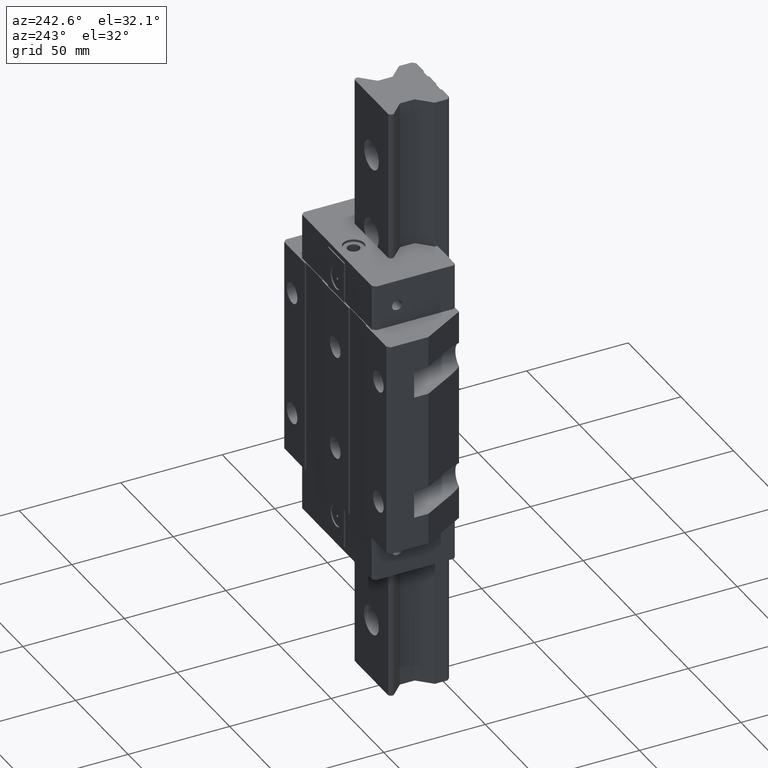
[diagram: clean part render]
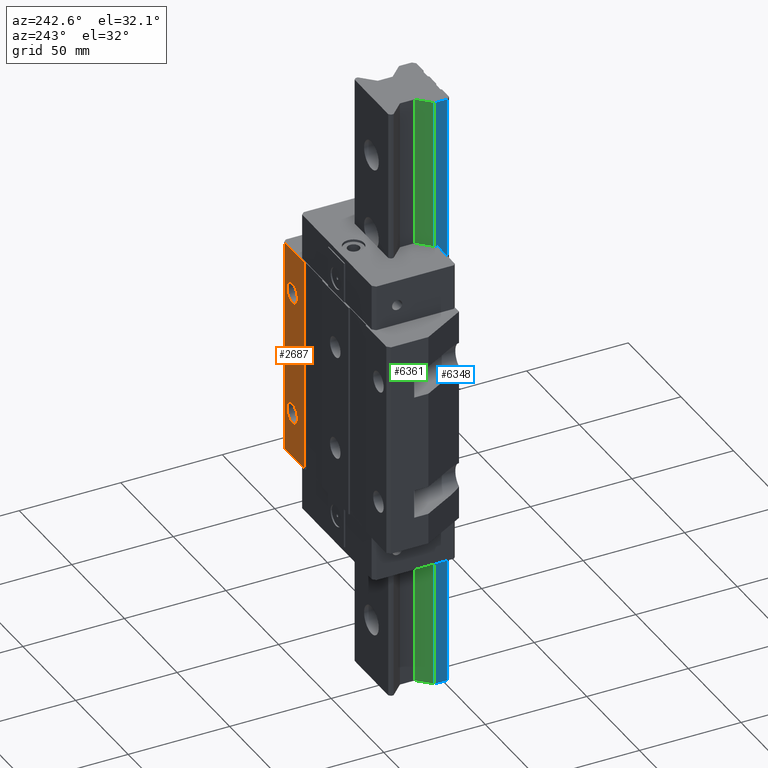
[diagram: same view with three faces highlighted in distinct colors, each labeled with its STEP entity id]
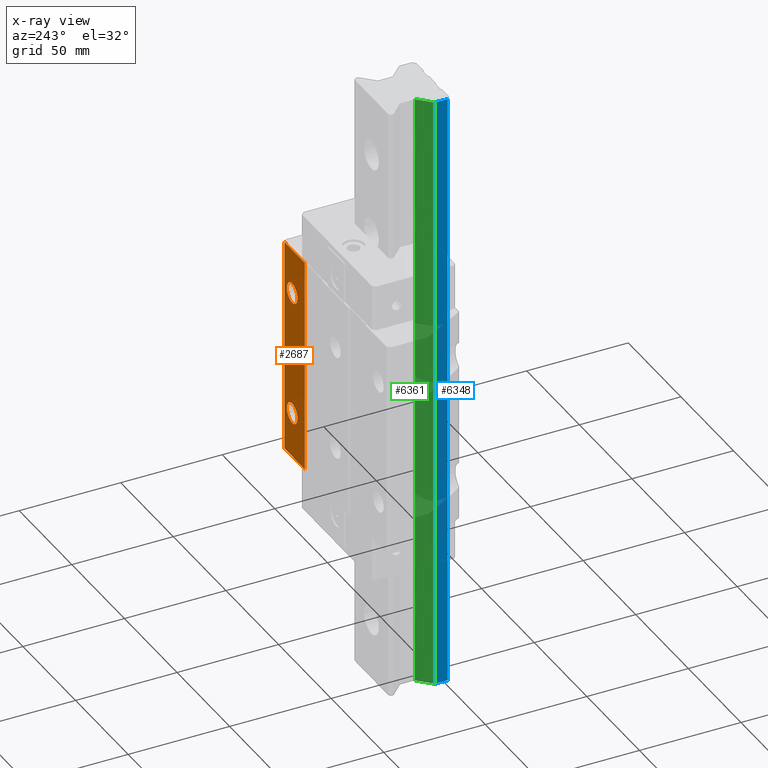
[diagram: x-ray of the same camera — body ghosted, the three highlighted faces saturated]
A machine part, auxiliary view with three faces highlighted in distinct colors.
The next image is the same camera in x-ray (body ghosted, the three faces saturated) — at least one of them is partly hidden behind the body in this view.
Their STEP definitions:

[orange] entity #2687 — the highlighted planar face has unit normal (0, 1, 0).
#273=DIRECTION('',(1.E0,0.E0,0.E0));
#274=VECTOR('',#273,1.95E1);
#275=CARTESIAN_POINT('',(2.9E1,4.8E1,5.325E1));
#276=LINE('',#275,#274);
#568=DIRECTION('',(1.E0,0.E0,0.E0));
#569=VECTOR('',#568,1.95E1);
#570=CARTESIAN_POINT('',(2.9E1,4.8E1,-5.325E1));
#571=LINE('',#570,#569);
#572=DIRECTION('',(0.E0,0.E0,-1.E0));
#573=VECTOR('',#572,1.065E2);
#574=CARTESIAN_POINT('',(2.9E1,4.8E1,5.325E1));
#575=LINE('',#574,#573);
#592=CARTESIAN_POINT('',(4.1E1,4.8E1,-3.1E1));
#593=DIRECTION('',(0.E0,1.E0,0.E0));
#594=DIRECTION('',(0.E0,0.E0,1.E0));
#595=AXIS2_PLACEMENT_3D('',#592,#593,#594);
#597=CARTESIAN_POINT('',(4.1E1,4.8E1,-3.1E1));
#598=DIRECTION('',(0.E0,1.E0,0.E0));
#599=DIRECTION('',(0.E0,0.E0,-1.E0));
#600=AXIS2_PLACEMENT_3D('',#597,#598,#599);
#602=CARTESIAN_POINT('',(4.1E1,4.8E1,3.1E1));
#603=DIRECTION('',(0.E0,1.E0,0.E0));
#604=DIRECTION('',(0.E0,0.E0,1.E0));
#605=AXIS2_PLACEMENT_3D('',#602,#603,#604);
#607=CARTESIAN_POINT('',(4.1E1,4.8E1,3.1E1));
#608=DIRECTION('',(0.E0,1.E0,0.E0));
#609=DIRECTION('',(0.E0,0.E0,-1.E0));
#610=AXIS2_PLACEMENT_3D('',#607,#608,#609);
#652=DIRECTION('',(0.E0,0.E0,-1.E0));
#653=VECTOR('',#652,1.065E2);
#654=CARTESIAN_POINT('',(4.85E1,4.8E1,5.325E1));
#655=LINE('',#654,#653);
#1515=CARTESIAN_POINT('',(4.85E1,4.8E1,-5.325E1));
#1516=VERTEX_POINT('',#1515);
#1517=CARTESIAN_POINT('',(2.9E1,4.8E1,-5.325E1));
#1518=VERTEX_POINT('',#1517);
#1631=CARTESIAN_POINT('',(2.9E1,4.8E1,5.325E1));
#1632=VERTEX_POINT('',#1631);
#1633=CARTESIAN_POINT('',(4.85E1,4.8E1,5.325E1));
#1634=VERTEX_POINT('',#1633);
#1924=CARTESIAN_POINT('',(4.1E1,4.8E1,-2.6E1));
#1925=CARTESIAN_POINT('',(4.1E1,4.8E1,-3.6E1));
#1926=VERTEX_POINT('',#1924);
#1927=VERTEX_POINT('',#1925);
#1928=CARTESIAN_POINT('',(4.1E1,4.8E1,3.6E1));
#1929=CARTESIAN_POINT('',(4.1E1,4.8E1,2.6E1));
#1930=VERTEX_POINT('',#1928);
#1931=VERTEX_POINT('',#1929);
#2664=CARTESIAN_POINT('',(1.25E1,4.8E1,-5.325E1));
#2665=DIRECTION('',(0.E0,1.E0,0.E0));
#2666=DIRECTION('',(-1.E0,0.E0,0.E0));
#2667=AXIS2_PLACEMENT_3D('',#2664,#2665,#2666);
#2668=PLANE('',#2667);
#2669=ORIENTED_EDGE('',*,*,#1979,.T.);
#2671=ORIENTED_EDGE('',*,*,#2670,.F.);
#2672=ORIENTED_EDGE('',*,*,#2273,.F.);
#2674=ORIENTED_EDGE('',*,*,#2673,.T.);
#2675=EDGE_LOOP('',(#2669,#2671,#2672,#2674));
#2676=FACE_OUTER_BOUND('',#2675,.F.);
#2678=ORIENTED_EDGE('',*,*,#2677,.T.);
#2680=ORIENTED_EDGE('',*,*,#2679,.T.);
#2681=EDGE_LOOP('',(#2678,#2680));
#2682=FACE_BOUND('',#2681,.F.);
#2683=ORIENTED_EDGE('',*,*,#2644,.T.);
#2684=ORIENTED_EDGE('',*,*,#2658,.T.);
#2685=EDGE_LOOP('',(#2683,#2684));
#2686=FACE_BOUND('',#2685,.F.);
#2687=ADVANCED_FACE('',(#2676,#2682,#2686),#2668,.T.);
#596=CIRCLE('',#595,5.E0);
#601=CIRCLE('',#600,5.E0);
#606=CIRCLE('',#605,5.E0);
#611=CIRCLE('',#610,5.E0);
#1979=EDGE_CURVE('',#1518,#1516,#571,.T.);
#2273=EDGE_CURVE('',#1632,#1634,#276,.T.);
#2644=EDGE_CURVE('',#1930,#1931,#606,.T.);
#2658=EDGE_CURVE('',#1931,#1930,#611,.T.);
#2670=EDGE_CURVE('',#1634,#1516,#655,.T.);
#2673=EDGE_CURVE('',#1632,#1518,#575,.T.);
#2677=EDGE_CURVE('',#1926,#1927,#596,.T.);
#2679=EDGE_CURVE('',#1927,#1926,#601,.T.);

[blue] entity #6348 — the highlighted planar face has unit normal (-1, 0, 0).
#4765=DIRECTION('',(-5.855502733313E-14,1.E0,0.E0));
#4766=VECTOR('',#4765,6.310000002104E0);
#4767=CARTESIAN_POINT('',(-1.7E1,1.5E0,-1.5E2));
#4768=LINE('',#4767,#4766);
#4769=DIRECTION('',(0.E0,0.E0,-1.E0));
#4770=VECTOR('',#4769,3.E2);
#4771=CARTESIAN_POINT('',(-1.7E1,1.5E0,1.5E2));
#4772=LINE('',#4771,#4770);
#4773=DIRECTION('',(0.E0,0.E0,-1.E0));
#4774=VECTOR('',#4773,3.E2);
#4775=CARTESIAN_POINT('',(-1.7E1,7.810000002104E0,1.5E2));
#4776=LINE('',#4775,#4774);
#4865=DIRECTION('',(-5.855502733313E-14,1.E0,0.E0));
#4866=VECTOR('',#4865,6.310000002104E0);
#4867=CARTESIAN_POINT('',(-1.7E1,1.5E0,1.5E2));
#4868=LINE('',#4867,#4866);
#5216=CARTESIAN_POINT('',(-1.7E1,7.810000002104E0,-1.5E2));
#5217=VERTEX_POINT('',#5216);
#5218=CARTESIAN_POINT('',(-1.7E1,1.5E0,-1.5E2));
#5219=VERTEX_POINT('',#5218);
#5515=CARTESIAN_POINT('',(-1.7E1,1.5E0,1.5E2));
#5516=VERTEX_POINT('',#5515);
#5517=CARTESIAN_POINT('',(-1.7E1,7.810000002104E0,1.5E2));
#5518=VERTEX_POINT('',#5517);
#6335=CARTESIAN_POINT('',(-1.7E1,7.810000002103E0,-1.5E2));
#6336=DIRECTION('',(-1.E0,0.E0,0.E0));
#6337=DIRECTION('',(0.E0,-1.E0,0.E0));
#6338=AXIS2_PLACEMENT_3D('',#6335,#6336,#6337);
#6339=PLANE('',#6338);
#6340=ORIENTED_EDGE('',*,*,#5528,.T.);
#6342=ORIENTED_EDGE('',*,*,#6341,.F.);
#6344=ORIENTED_EDGE('',*,*,#6343,.F.);
#6345=ORIENTED_EDGE('',*,*,#6327,.T.);
#6346=EDGE_LOOP('',(#6340,#6342,#6344,#6345));
#6347=FACE_OUTER_BOUND('',#6346,.F.);
#6348=ADVANCED_FACE('',(#6347),#6339,.T.);
#5528=EDGE_CURVE('',#5219,#5217,#4768,.T.);
#6327=EDGE_CURVE('',#5516,#5219,#4772,.T.);
#6341=EDGE_CURVE('',#5518,#5217,#4776,.T.);
#6343=EDGE_CURVE('',#5516,#5518,#4868,.T.);

[green] entity #6361 — the highlighted planar face has unit normal (-0.7071, 0.7071, 0).
#4140=DIRECTION('',(-7.071067816334E-1,-7.071067807397E-1,0.E0));
#4141=VECTOR('',#4140,9.192388149617E0);
#4142=CARTESIAN_POINT('',(-1.05E1,1.430999999389E1,-1.5E2));
#4143=LINE('',#4142,#4141);
#4192=DIRECTION('',(0.E0,0.E0,-1.E0));
#4193=VECTOR('',#4192,3.E2);
#4194=CARTESIAN_POINT('',(-1.05E1,1.430999999389E1,1.5E2));
#4195=LINE('',#4194,#4193);
#4773=DIRECTION('',(0.E0,0.E0,-1.E0));
#4774=VECTOR('',#4773,3.E2);
#4775=CARTESIAN_POINT('',(-1.7E1,7.810000002104E0,1.5E2));
#4776=LINE('',#4775,#4774);
#4869=DIRECTION('',(7.071067816334E-1,7.071067807397E-1,0.E0));
#4870=VECTOR('',#4869,9.192388149617E0);
#4871=CARTESIAN_POINT('',(-1.7E1,7.810000002104E0,1.5E2));
#4872=LINE('',#4871,#4870);
#5212=CARTESIAN_POINT('',(-1.05E1,1.430999999389E1,-1.5E2));
#5214=VERTEX_POINT('',#5212);
#5216=CARTESIAN_POINT('',(-1.7E1,7.810000002104E0,-1.5E2));
#5217=VERTEX_POINT('',#5216);
#5262=CARTESIAN_POINT('',(-1.05E1,1.430999999389E1,1.5E2));
#5263=VERTEX_POINT('',#5262);
#5517=CARTESIAN_POINT('',(-1.7E1,7.810000002104E0,1.5E2));
#5518=VERTEX_POINT('',#5517);
#6349=CARTESIAN_POINT('',(-1.05E1,1.430999999389E1,-1.5E2));
#6350=DIRECTION('',(-7.071067807397E-1,7.071067816334E-1,0.E0));
#6351=DIRECTION('',(-7.071067816334E-1,-7.071067807397E-1,0.E0));
#6352=AXIS2_PLACEMENT_3D('',#6349,#6350,#6351);
#6353=PLANE('',#6352);
#6354=ORIENTED_EDGE('',*,*,#5526,.F.);
#6355=ORIENTED_EDGE('',*,*,#5585,.F.);
#6357=ORIENTED_EDGE('',*,*,#6356,.F.);
#6358=ORIENTED_EDGE('',*,*,#6341,.T.);
#6359=EDGE_LOOP('',(#6354,#6355,#6357,#6358));
#6360=FACE_OUTER_BOUND('',#6359,.F.);
#6361=ADVANCED_FACE('',(#6360),#6353,.T.);
#5526=EDGE_CURVE('',#5214,#5217,#4143,.T.);
#5585=EDGE_CURVE('',#5263,#5214,#4195,.T.);
#6341=EDGE_CURVE('',#5518,#5217,#4776,.T.);
#6356=EDGE_CURVE('',#5518,#5263,#4872,.T.);